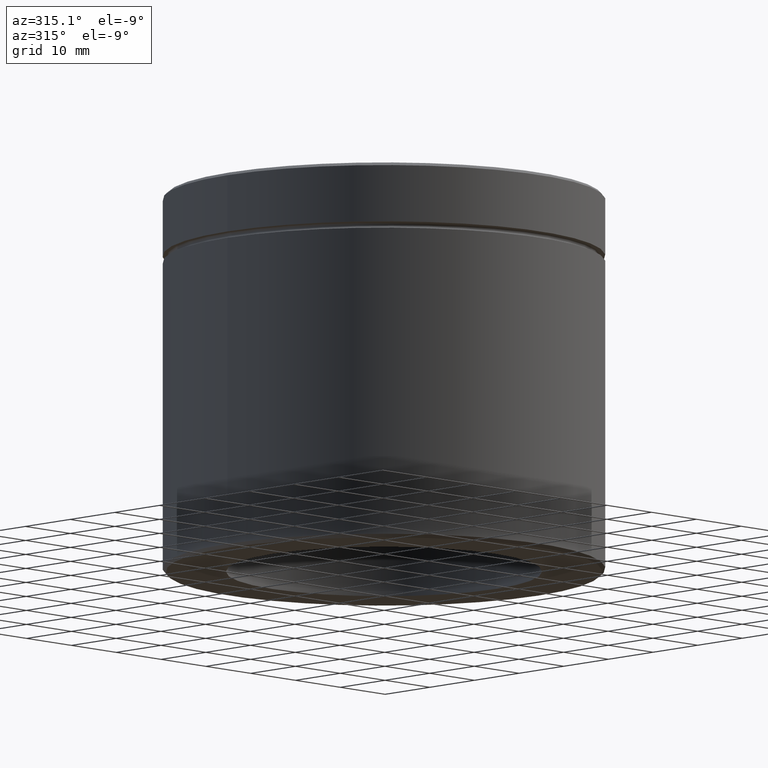
[diagram: clean part render]
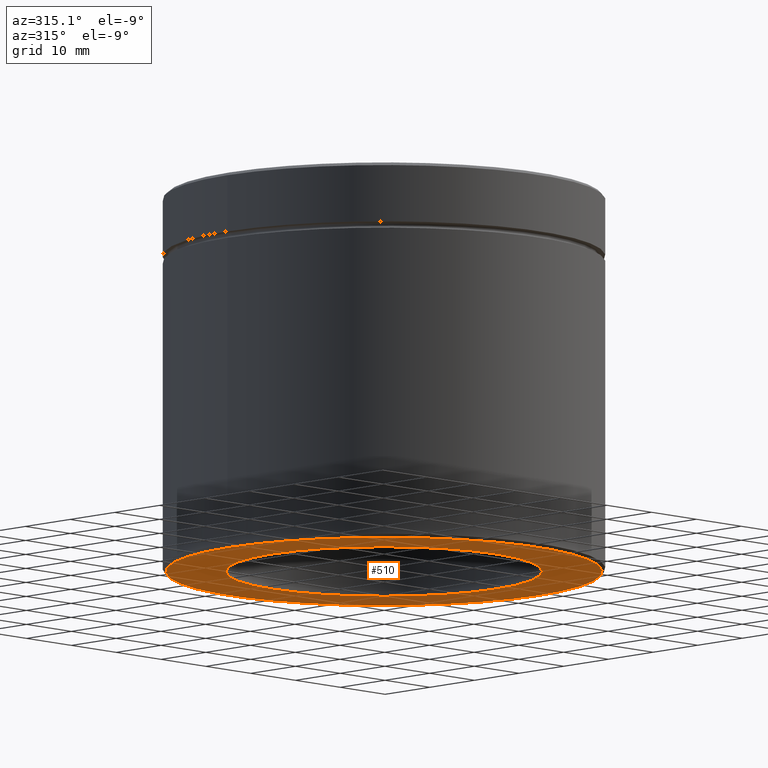
[diagram: same view with one face highlighted and labeled with its STEP entity id]
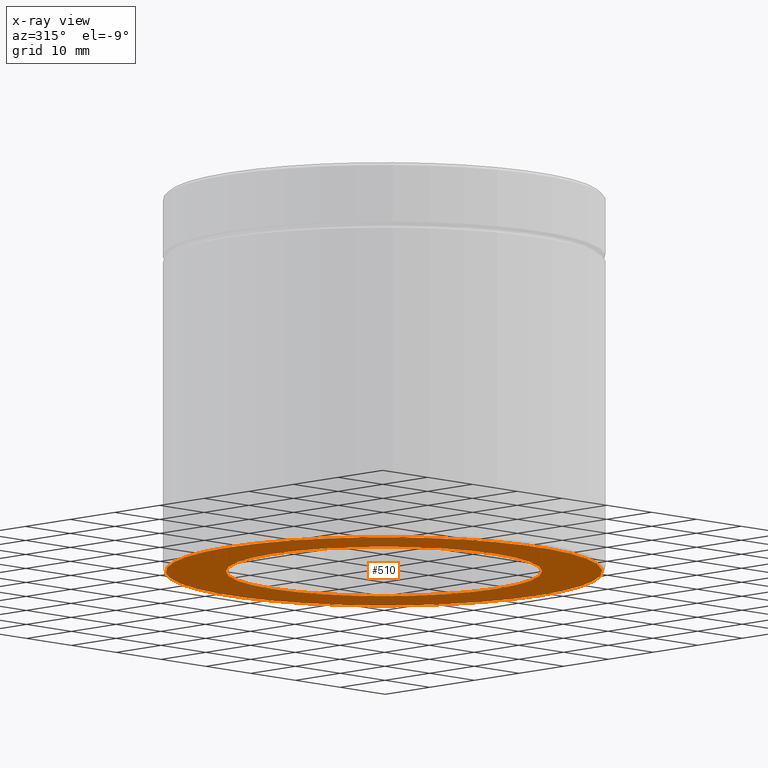
[diagram: x-ray of the same camera — body ghosted, the highlighted face saturated]
A machine part, auxiliary view. The second image highlights one B-rep face of the part: STEP entity #510.
The next image is the same camera in x-ray: the body ghosted, the highlighted face saturated — about 0% of this face is hidden behind the body in this view.
In plain terms, the highlighted planar face has unit normal (0, 0, -1).
Its self-contained STEP definition (entity closure, byte-faithful):
#7 = DIRECTION ( 'NONE',  ( 0.000000000000000000, 0.000000000000000000, -1.000000000000000000 ) ) ;
#18 = AXIS2_PLACEMENT_3D ( 'NONE', #126, #483, #440 ) ;
#19 = CARTESIAN_POINT ( 'NONE',  ( -34.50000000000002132, 4.255647627037053498E-15, -60.00000000000000000 ) ) ;
#52 = EDGE_CURVE ( 'NONE', #372, #530, #274, .T. ) ;
#71 = EDGE_CURVE ( 'NONE', #144, #521, #107, .T. ) ;
#107 = CIRCLE ( 'NONE', #285, 25.00000000000000000 ) ;
#125 = EDGE_CURVE ( 'NONE', #530, #372, #544, .T. ) ;
#126 = CARTESIAN_POINT ( 'NONE',  ( 0.000000000000000000, 35.00000000000000000, -60.00000000000000000 ) ) ;
#141 = EDGE_LOOP ( 'NONE', ( #280, #328 ) ) ;
#144 = VERTEX_POINT ( 'NONE', #365 ) ;
#178 = DIRECTION ( 'NONE',  ( -1.000000000000000000, 0.000000000000000000, 0.000000000000000000 ) ) ;
#181 = CARTESIAN_POINT ( 'NONE',  ( 0.000000000000000000, 0.000000000000000000, -60.00000000000000000 ) ) ;
#183 = AXIS2_PLACEMENT_3D ( 'NONE', #181, #282, #338 ) ;
#185 = PLANE ( 'NONE',  #18 ) ;
#190 = CARTESIAN_POINT ( 'NONE',  ( -25.00000000000000000, 0.000000000000000000, -60.00000000000000000 ) ) ;
#201 = CARTESIAN_POINT ( 'NONE',  ( 0.000000000000000000, 0.000000000000000000, -60.00000000000000000 ) ) ;
#249 = DIRECTION ( 'NONE',  ( 0.000000000000000000, 0.000000000000000000, -1.000000000000000000 ) ) ;
#274 = CIRCLE ( 'NONE', #533, 34.50000000000002132 ) ;
#280 = ORIENTED_EDGE ( 'NONE', *, *, #361, .F. ) ;
#282 = DIRECTION ( 'NONE',  ( 0.000000000000000000, 0.000000000000000000, -1.000000000000000000 ) ) ;
#285 = AXIS2_PLACEMENT_3D ( 'NONE', #386, #556, #559 ) ;
#296 = EDGE_LOOP ( 'NONE', ( #459, #523 ) ) ;
#328 = ORIENTED_EDGE ( 'NONE', *, *, #71, .F. ) ;
#338 = DIRECTION ( 'NONE',  ( -1.000000000000000000, 0.000000000000000000, 0.000000000000000000 ) ) ;
#361 = EDGE_CURVE ( 'NONE', #521, #144, #434, .T. ) ;
#365 = CARTESIAN_POINT ( 'NONE',  ( 25.00000000000000000, 3.061616997868382254E-15, -60.00000000000000000 ) ) ;
#372 = VERTEX_POINT ( 'NONE', #450 ) ;
#386 = CARTESIAN_POINT ( 'NONE',  ( 0.000000000000000000, 0.000000000000000000, -60.00000000000000000 ) ) ;
#412 = FACE_BOUND ( 'NONE', #141, .T. ) ;
#434 = CIRCLE ( 'NONE', #183, 25.00000000000000000 ) ;
#440 = DIRECTION ( 'NONE',  ( -1.000000000000000000, 0.000000000000000000, -0.000000000000000000 ) ) ;
#450 = CARTESIAN_POINT ( 'NONE',  ( 34.50000000000002132, 0.000000000000000000, -60.00000000000000000 ) ) ;
#459 = ORIENTED_EDGE ( 'NONE', *, *, #52, .T. ) ;
#483 = DIRECTION ( 'NONE',  ( 0.000000000000000000, 0.000000000000000000, -1.000000000000000000 ) ) ;
#510 = ADVANCED_FACE ( 'NONE', ( #532, #412 ), #185, .T. ) ;
#521 = VERTEX_POINT ( 'NONE', #190 ) ;
#523 = ORIENTED_EDGE ( 'NONE', *, *, #125, .T. ) ;
#524 = AXIS2_PLACEMENT_3D ( 'NONE', #534, #7, #178 ) ;
#530 = VERTEX_POINT ( 'NONE', #19 ) ;
#532 = FACE_OUTER_BOUND ( 'NONE', #296, .T. ) ;
#533 = AXIS2_PLACEMENT_3D ( 'NONE', #201, #249, #560 ) ;
#534 = CARTESIAN_POINT ( 'NONE',  ( 0.000000000000000000, 0.000000000000000000, -60.00000000000000000 ) ) ;
#544 = CIRCLE ( 'NONE', #524, 34.50000000000002132 ) ;
#556 = DIRECTION ( 'NONE',  ( 0.000000000000000000, 0.000000000000000000, -1.000000000000000000 ) ) ;
#559 = DIRECTION ( 'NONE',  ( -1.000000000000000000, 0.000000000000000000, 0.000000000000000000 ) ) ;
#560 = DIRECTION ( 'NONE',  ( -1.000000000000000000, 0.000000000000000000, 0.000000000000000000 ) ) ;